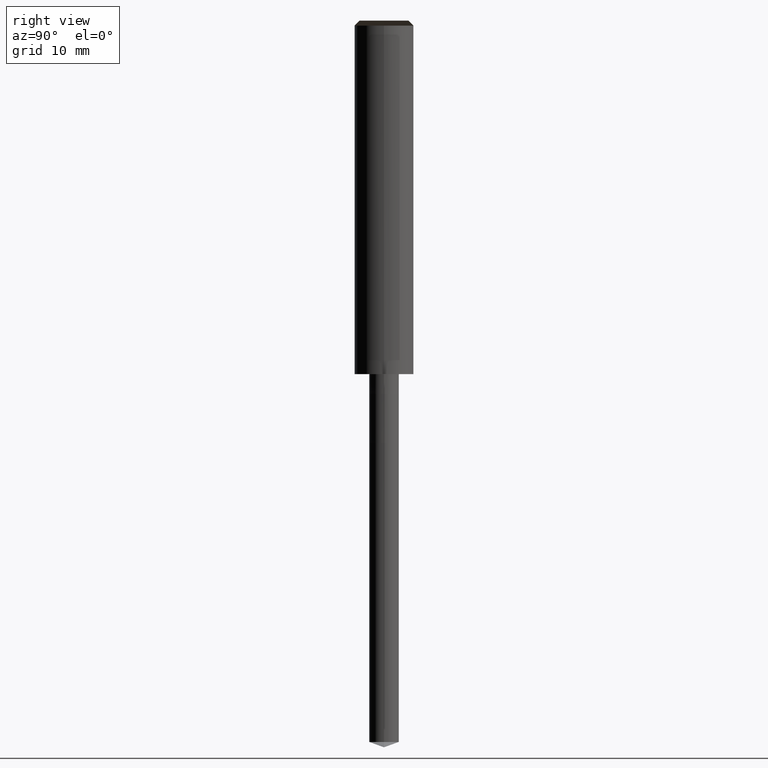
[diagram: clean part render]
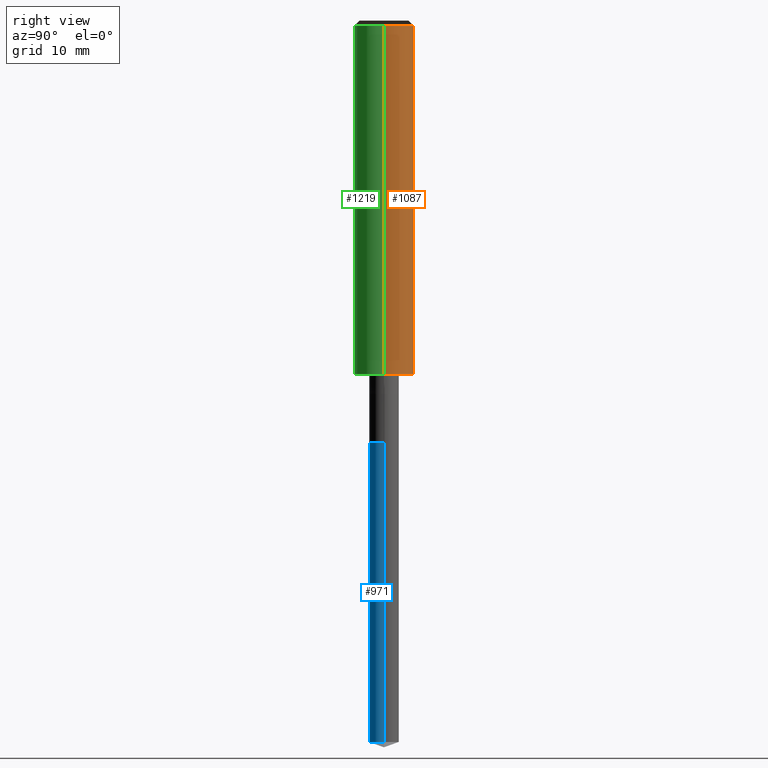
[diagram: same view with three faces highlighted in distinct colors, each labeled with its STEP entity id]
A machine part, right view with three faces highlighted in distinct colors.
Their STEP definitions:

[orange] entity #1087 — the highlighted face is a freeform B-spline surface patch.
#848=CARTESIAN_POINT('',(3.0,0.0,0.0));
#849=CARTESIAN_POINT('',(3.0,3.0,0.0));
#850=CARTESIAN_POINT('',(0.0,3.0,0.0));
#851=CARTESIAN_POINT('',(-3.0,3.0,0.0));
#852=CARTESIAN_POINT('',(-3.0,0.0,0.0));
#853=CARTESIAN_POINT('',(3.0,0.0,35.5));
#854=CARTESIAN_POINT('',(3.0,3.0,35.5));
#855=CARTESIAN_POINT('',(0.0,3.0,35.5));
#856=CARTESIAN_POINT('',(-3.0,3.0,35.5));
#857=CARTESIAN_POINT('',(-3.0,0.0,35.5));
#1068=(
BOUNDED_SURFACE()
B_SPLINE_SURFACE(1,2,(
(#848,#849,#850,#851,#852),
(#853,#854,#855,#856,#857)
), .UNSPECIFIED.,.F.,.F.,.F.)
B_SPLINE_SURFACE_WITH_KNOTS((2,2),(3,2,3),(
0.0,1.0),(
0.0,0.5,1.0), .UNSPECIFIED.)
GEOMETRIC_REPRESENTATION_ITEM()
RATIONAL_B_SPLINE_SURFACE(((1.0,0.707106781187,1.0,0.707106781187,1.0),
(1.0,0.707106781187,1.0,0.707106781187,1.0)
))
REPRESENTATION_ITEM('')
SURFACE()
);
#1069=(
BOUNDED_CURVE()
B_SPLINE_CURVE(2,(#852,#851,#850,#849,#848),.UNSPECIFIED.,.F.,.F.)
B_SPLINE_CURVE_WITH_KNOTS((3,2,3),
(0.0,0.5,1.0),.UNSPECIFIED.)
CURVE()
GEOMETRIC_REPRESENTATION_ITEM()
RATIONAL_B_SPLINE_CURVE((1.0,0.707106781187,1.0,0.707106781187,1.0))
REPRESENTATION_ITEM('')
);
#1070=(
BOUNDED_CURVE()
B_SPLINE_CURVE(1,(#848,#853),.UNSPECIFIED.,.F.,.F.)
B_SPLINE_CURVE_WITH_KNOTS((2,2),
(0.0,1.0),.UNSPECIFIED.)
CURVE()
GEOMETRIC_REPRESENTATION_ITEM()
RATIONAL_B_SPLINE_CURVE((1.0,1.0))
REPRESENTATION_ITEM('')
);
#1071=(
BOUNDED_CURVE()
B_SPLINE_CURVE(2,(#853,#854,#855,#856,#857),.UNSPECIFIED.,.F.,.F.)
B_SPLINE_CURVE_WITH_KNOTS((3,2,3),
(0.0,0.5,1.0),.UNSPECIFIED.)
CURVE()
GEOMETRIC_REPRESENTATION_ITEM()
RATIONAL_B_SPLINE_CURVE((1.0,0.707106781187,1.0,0.707106781187,1.0))
REPRESENTATION_ITEM('')
);
#1072=(
BOUNDED_CURVE()
B_SPLINE_CURVE(1,(#857,#852),.UNSPECIFIED.,.F.,.F.)
B_SPLINE_CURVE_WITH_KNOTS((2,2),
(0.0,1.0),.UNSPECIFIED.)
CURVE()
GEOMETRIC_REPRESENTATION_ITEM()
RATIONAL_B_SPLINE_CURVE((1.0,1.0))
REPRESENTATION_ITEM('')
);
#1073=VERTEX_POINT('',#848);
#1074=VERTEX_POINT('',#852);
#1075=VERTEX_POINT('',#853);
#1076=VERTEX_POINT('',#857);
#1077=EDGE_CURVE('',#1074,#1073,#1069,.T.);
#1078=EDGE_CURVE('',#1073,#1075,#1070,.T.);
#1079=EDGE_CURVE('',#1075,#1076,#1071,.T.);
#1080=EDGE_CURVE('',#1076,#1074,#1072,.T.);
#1081=ORIENTED_EDGE('',*,*,#1077,.T.);
#1082=ORIENTED_EDGE('',*,*,#1078,.T.);
#1083=ORIENTED_EDGE('',*,*,#1079,.T.);
#1084=ORIENTED_EDGE('',*,*,#1080,.T.);
#1085=EDGE_LOOP('',(#1081,#1082,#1083,#1084));
#1086=FACE_OUTER_BOUND('',#1085,.T.);
#1087=ADVANCED_FACE('',(#1086),#1068,.T.);

[blue] entity #971 — the highlighted face is a freeform B-spline surface patch.
#821=CARTESIAN_POINT('',(1.5,0.0,-37.454044648601));
#825=CARTESIAN_POINT('',(-1.5,0.0,-37.454044648601));
#826=CARTESIAN_POINT('',(1.5,0.0,-7.0));
#830=CARTESIAN_POINT('',(-1.5,0.0,-7.0));
#832=CARTESIAN_POINT('',(-1.5,-1.5,-37.454044648601));
#833=CARTESIAN_POINT('',(0.0,-1.5,-37.454044648601));
#834=CARTESIAN_POINT('',(1.5,-1.5,-37.454044648601));
#835=CARTESIAN_POINT('',(-1.5,-1.5,-7.0));
#836=CARTESIAN_POINT('',(0.0,-1.5,-7.0));
#837=CARTESIAN_POINT('',(1.5,-1.5,-7.0));
#952=(
BOUNDED_SURFACE()
B_SPLINE_SURFACE(1,2,(
(#825,#832,#833,#834,#821),
(#830,#835,#836,#837,#826)
), .UNSPECIFIED.,.F.,.F.,.F.)
B_SPLINE_SURFACE_WITH_KNOTS((2,2),(3,2,3),(
0.0,1.0),(
0.0,0.5,1.0), .UNSPECIFIED.)
GEOMETRIC_REPRESENTATION_ITEM()
RATIONAL_B_SPLINE_SURFACE(((1.0,0.707106781187,1.0,0.707106781187,1.0),
(1.0,0.707106781187,1.0,0.707106781187,1.0)
))
REPRESENTATION_ITEM('')
SURFACE()
);
#953=(
BOUNDED_CURVE()
B_SPLINE_CURVE(2,(#821,#834,#833,#832,#825),.UNSPECIFIED.,.F.,.F.)
B_SPLINE_CURVE_WITH_KNOTS((3,2,3),
(0.0,0.5,1.0),.UNSPECIFIED.)
CURVE()
GEOMETRIC_REPRESENTATION_ITEM()
RATIONAL_B_SPLINE_CURVE((1.0,0.707106781187,1.0,0.707106781187,1.0))
REPRESENTATION_ITEM('')
);
#954=(
BOUNDED_CURVE()
B_SPLINE_CURVE(1,(#825,#830),.UNSPECIFIED.,.F.,.F.)
B_SPLINE_CURVE_WITH_KNOTS((2,2),
(0.0,1.0),.UNSPECIFIED.)
CURVE()
GEOMETRIC_REPRESENTATION_ITEM()
RATIONAL_B_SPLINE_CURVE((1.0,1.0))
REPRESENTATION_ITEM('')
);
#955=(
BOUNDED_CURVE()
B_SPLINE_CURVE(2,(#830,#835,#836,#837,#826),.UNSPECIFIED.,.F.,.F.)
B_SPLINE_CURVE_WITH_KNOTS((3,2,3),
(0.0,0.5,1.0),.UNSPECIFIED.)
CURVE()
GEOMETRIC_REPRESENTATION_ITEM()
RATIONAL_B_SPLINE_CURVE((1.0,0.707106781187,1.0,0.707106781187,1.0))
REPRESENTATION_ITEM('')
);
#956=(
BOUNDED_CURVE()
B_SPLINE_CURVE(1,(#826,#821),.UNSPECIFIED.,.F.,.F.)
B_SPLINE_CURVE_WITH_KNOTS((2,2),
(0.0,1.0),.UNSPECIFIED.)
CURVE()
GEOMETRIC_REPRESENTATION_ITEM()
RATIONAL_B_SPLINE_CURVE((1.0,1.0))
REPRESENTATION_ITEM('')
);
#957=VERTEX_POINT('',#821);
#958=VERTEX_POINT('',#825);
#959=VERTEX_POINT('',#826);
#960=VERTEX_POINT('',#830);
#961=EDGE_CURVE('',#957,#958,#953,.T.);
#962=EDGE_CURVE('',#958,#960,#954,.T.);
#963=EDGE_CURVE('',#960,#959,#955,.T.);
#964=EDGE_CURVE('',#959,#957,#956,.T.);
#965=ORIENTED_EDGE('',*,*,#961,.T.);
#966=ORIENTED_EDGE('',*,*,#962,.T.);
#967=ORIENTED_EDGE('',*,*,#963,.T.);
#968=ORIENTED_EDGE('',*,*,#964,.T.);
#969=EDGE_LOOP('',(#965,#966,#967,#968));
#970=FACE_OUTER_BOUND('',#969,.T.);
#971=ADVANCED_FACE('',(#970),#952,.T.);

[green] entity #1219 — the highlighted face is a freeform B-spline surface patch.
#848=CARTESIAN_POINT('',(3.0,0.0,0.0));
#852=CARTESIAN_POINT('',(-3.0,0.0,0.0));
#853=CARTESIAN_POINT('',(3.0,0.0,35.5));
#857=CARTESIAN_POINT('',(-3.0,0.0,35.5));
#870=CARTESIAN_POINT('',(-3.0,-3.0,0.0));
#871=CARTESIAN_POINT('',(0.0,-3.0,0.0));
#872=CARTESIAN_POINT('',(3.0,-3.0,0.0));
#873=CARTESIAN_POINT('',(-3.0,-3.0,35.5));
#874=CARTESIAN_POINT('',(0.0,-3.0,35.5));
#875=CARTESIAN_POINT('',(3.0,-3.0,35.5));
#1200=(
BOUNDED_SURFACE()
B_SPLINE_SURFACE(1,2,(
(#852,#870,#871,#872,#848),
(#857,#873,#874,#875,#853)
), .UNSPECIFIED.,.F.,.F.,.F.)
B_SPLINE_SURFACE_WITH_KNOTS((2,2),(3,2,3),(
0.0,1.0),(
0.0,0.5,1.0), .UNSPECIFIED.)
GEOMETRIC_REPRESENTATION_ITEM()
RATIONAL_B_SPLINE_SURFACE(((1.0,0.707106781187,1.0,0.707106781187,1.0),
(1.0,0.707106781187,1.0,0.707106781187,1.0)
))
REPRESENTATION_ITEM('')
SURFACE()
);
#1201=(
BOUNDED_CURVE()
B_SPLINE_CURVE(2,(#848,#872,#871,#870,#852),.UNSPECIFIED.,.F.,.F.)
B_SPLINE_CURVE_WITH_KNOTS((3,2,3),
(0.0,0.5,1.0),.UNSPECIFIED.)
CURVE()
GEOMETRIC_REPRESENTATION_ITEM()
RATIONAL_B_SPLINE_CURVE((1.0,0.707106781187,1.0,0.707106781187,1.0))
REPRESENTATION_ITEM('')
);
#1202=(
BOUNDED_CURVE()
B_SPLINE_CURVE(1,(#852,#857),.UNSPECIFIED.,.F.,.F.)
B_SPLINE_CURVE_WITH_KNOTS((2,2),
(0.0,1.0),.UNSPECIFIED.)
CURVE()
GEOMETRIC_REPRESENTATION_ITEM()
RATIONAL_B_SPLINE_CURVE((1.0,1.0))
REPRESENTATION_ITEM('')
);
#1203=(
BOUNDED_CURVE()
B_SPLINE_CURVE(2,(#857,#873,#874,#875,#853),.UNSPECIFIED.,.F.,.F.)
B_SPLINE_CURVE_WITH_KNOTS((3,2,3),
(0.0,0.5,1.0),.UNSPECIFIED.)
CURVE()
GEOMETRIC_REPRESENTATION_ITEM()
RATIONAL_B_SPLINE_CURVE((1.0,0.707106781187,1.0,0.707106781187,1.0))
REPRESENTATION_ITEM('')
);
#1204=(
BOUNDED_CURVE()
B_SPLINE_CURVE(1,(#853,#848),.UNSPECIFIED.,.F.,.F.)
B_SPLINE_CURVE_WITH_KNOTS((2,2),
(0.0,1.0),.UNSPECIFIED.)
CURVE()
GEOMETRIC_REPRESENTATION_ITEM()
RATIONAL_B_SPLINE_CURVE((1.0,1.0))
REPRESENTATION_ITEM('')
);
#1205=VERTEX_POINT('',#848);
#1206=VERTEX_POINT('',#852);
#1207=VERTEX_POINT('',#853);
#1208=VERTEX_POINT('',#857);
#1209=EDGE_CURVE('',#1205,#1206,#1201,.T.);
#1210=EDGE_CURVE('',#1206,#1208,#1202,.T.);
#1211=EDGE_CURVE('',#1208,#1207,#1203,.T.);
#1212=EDGE_CURVE('',#1207,#1205,#1204,.T.);
#1213=ORIENTED_EDGE('',*,*,#1209,.T.);
#1214=ORIENTED_EDGE('',*,*,#1210,.T.);
#1215=ORIENTED_EDGE('',*,*,#1211,.T.);
#1216=ORIENTED_EDGE('',*,*,#1212,.T.);
#1217=EDGE_LOOP('',(#1213,#1214,#1215,#1216));
#1218=FACE_OUTER_BOUND('',#1217,.T.);
#1219=ADVANCED_FACE('',(#1218),#1200,.T.);